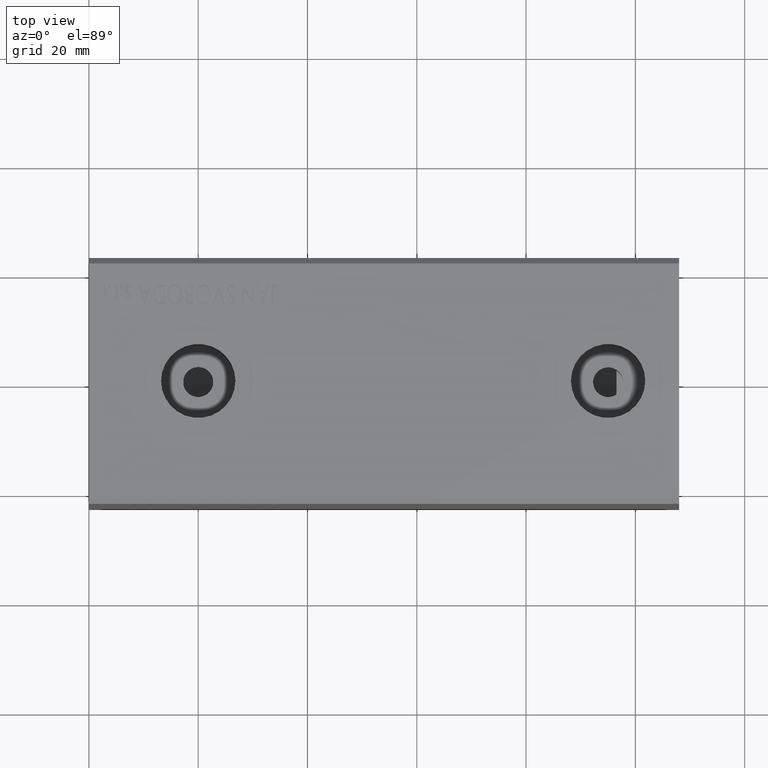
[diagram: clean part render]
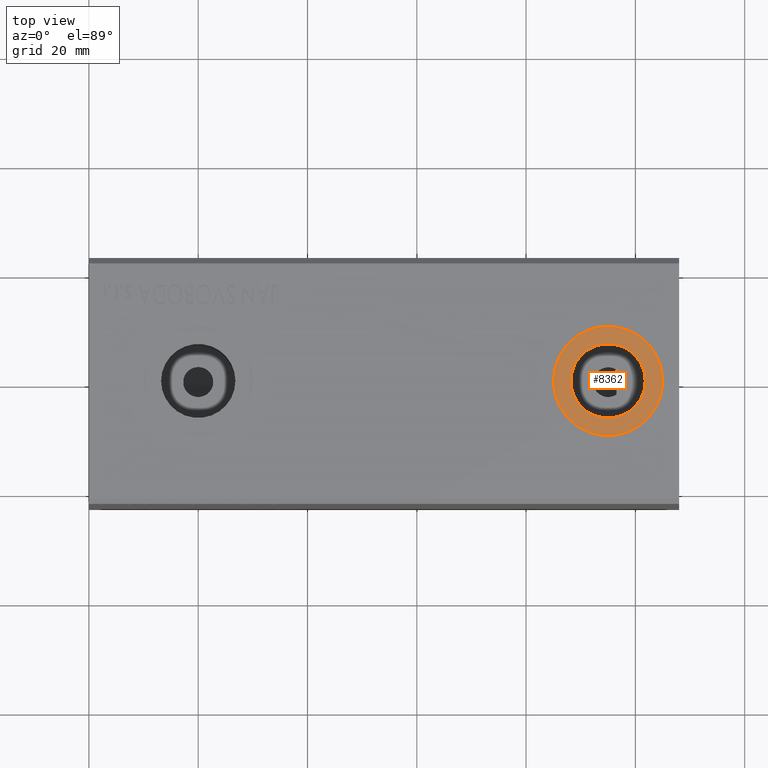
[diagram: same view with one face highlighted and labeled with its STEP entity id]
A machine part, top view. The second image highlights one B-rep face of the part: STEP entity #8362.
In plain terms, the highlighted planar face has unit normal (0, 0, 1).
Its self-contained STEP definition (entity closure, byte-faithful):
#3 = DIRECTION ( 'NONE',  ( 0.000000000000000000, 0.000000000000000000, 1.000000000000000000 ) ) ;
#485 = DIRECTION ( 'NONE',  ( 0.000000000000000000, 0.000000000000000000, 1.000000000000000000 ) ) ;
#3080 = DIRECTION ( 'NONE',  ( 1.000000000000000000, 0.000000000000000000, 0.000000000000000000 ) ) ;
#3572 = AXIS2_PLACEMENT_3D ( 'NONE', #29913, #485, #3080 ) ;
#4852 = EDGE_CURVE ( 'NONE', #36434, #14342, #13849, .T. ) ;
#5379 = CARTESIAN_POINT ( 'NONE',  ( 95.00000000000000000, 0.000000000000000000, 32.39999999999999858 ) ) ;
#6013 = VERTEX_POINT ( 'NONE', #34922 ) ;
#7902 = AXIS2_PLACEMENT_3D ( 'NONE', #40376, #13958, #27057 ) ;
#8362 = ADVANCED_FACE ( 'NONE', ( #41402, #25287 ), #21209, .T. ) ;
#9621 = CARTESIAN_POINT ( 'NONE',  ( 101.7999999999999972, 0.000000000000000000, 32.39999999999999858 ) ) ;
#11184 = DIRECTION ( 'NONE',  ( 0.000000000000000000, 0.000000000000000000, 1.000000000000000000 ) ) ;
#13537 = EDGE_LOOP ( 'NONE', ( #23413, #39488 ) ) ;
#13849 = CIRCLE ( 'NONE', #27585, 6.800000000000000711 ) ;
#13958 = DIRECTION ( 'NONE',  ( 0.000000000000000000, 0.000000000000000000, 1.000000000000000000 ) ) ;
#14342 = VERTEX_POINT ( 'NONE', #17907 ) ;
#14827 = EDGE_CURVE ( 'NONE', #41617, #6013, #18193, .T. ) ;
#17907 = CARTESIAN_POINT ( 'NONE',  ( 88.20000000000000284, 8.327598234201995202E-16, 32.39999999999999858 ) ) ;
#18193 = CIRCLE ( 'NONE', #7902, 10.00000000000000888 ) ;
#21209 = PLANE ( 'NONE',  #22202 ) ;
#22202 = AXIS2_PLACEMENT_3D ( 'NONE', #34537, #34317, #41176 ) ;
#23413 = ORIENTED_EDGE ( 'NONE', *, *, #14827, .T. ) ;
#25287 = FACE_OUTER_BOUND ( 'NONE', #13537, .T. ) ;
#26928 = AXIS2_PLACEMENT_3D ( 'NONE', #5379, #11184, #41024 ) ;
#27057 = DIRECTION ( 'NONE',  ( 1.000000000000000000, 0.000000000000000000, 0.000000000000000000 ) ) ;
#27585 = AXIS2_PLACEMENT_3D ( 'NONE', #32857, #3, #33273 ) ;
#29913 = CARTESIAN_POINT ( 'NONE',  ( 95.00000000000000000, 0.000000000000000000, 32.39999999999999858 ) ) ;
#32378 = CIRCLE ( 'NONE', #3572, 6.800000000000000711 ) ;
#32857 = CARTESIAN_POINT ( 'NONE',  ( 95.00000000000000000, 0.000000000000000000, 32.39999999999999858 ) ) ;
#33273 = DIRECTION ( 'NONE',  ( 1.000000000000000000, 0.000000000000000000, 0.000000000000000000 ) ) ;
#34317 = DIRECTION ( 'NONE',  ( 0.000000000000000000, 0.000000000000000000, 1.000000000000000000 ) ) ;
#34537 = CARTESIAN_POINT ( 'NONE',  ( 95.00000000000000000, 0.000000000000000000, 32.39999999999999858 ) ) ;
#34922 = CARTESIAN_POINT ( 'NONE',  ( 84.99999999999998579, 1.224646799147354440E-15, 32.39999999999999858 ) ) ;
#35166 = CIRCLE ( 'NONE', #26928, 10.00000000000000888 ) ;
#35252 = EDGE_CURVE ( 'NONE', #6013, #41617, #35166, .T. ) ;
#35683 = EDGE_LOOP ( 'NONE', ( #37625, #35741 ) ) ;
#35741 = ORIENTED_EDGE ( 'NONE', *, *, #37423, .F. ) ;
#36434 = VERTEX_POINT ( 'NONE', #9621 ) ;
#37423 = EDGE_CURVE ( 'NONE', #14342, #36434, #32378, .T. ) ;
#37625 = ORIENTED_EDGE ( 'NONE', *, *, #4852, .F. ) ;
#39488 = ORIENTED_EDGE ( 'NONE', *, *, #35252, .T. ) ;
#40376 = CARTESIAN_POINT ( 'NONE',  ( 95.00000000000000000, 0.000000000000000000, 32.39999999999999858 ) ) ;
#40717 = CARTESIAN_POINT ( 'NONE',  ( 105.0000000000000142, 0.000000000000000000, 32.39999999999999858 ) ) ;
#41024 = DIRECTION ( 'NONE',  ( 1.000000000000000000, 0.000000000000000000, 0.000000000000000000 ) ) ;
#41176 = DIRECTION ( 'NONE',  ( 1.000000000000000000, 0.000000000000000000, -0.000000000000000000 ) ) ;
#41402 = FACE_BOUND ( 'NONE', #35683, .T. ) ;
#41617 = VERTEX_POINT ( 'NONE', #40717 ) ;